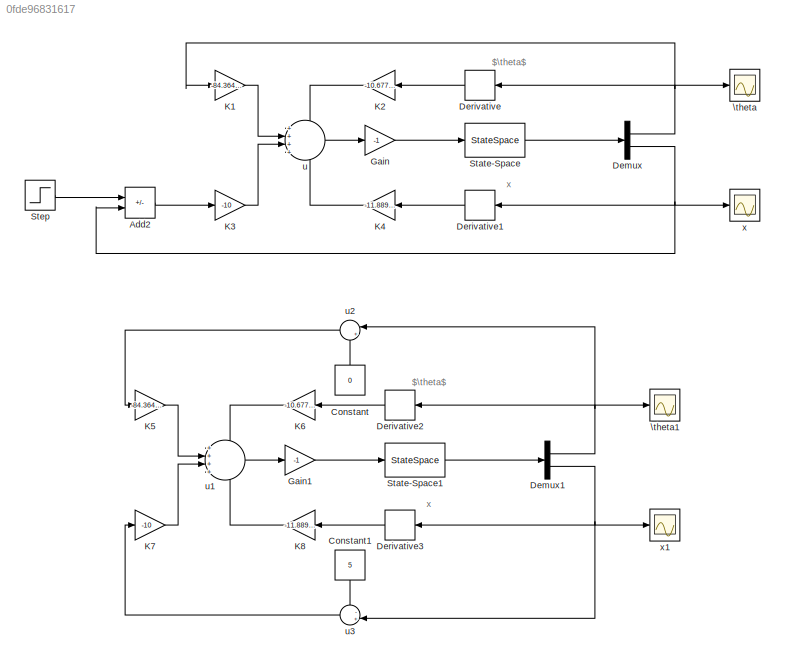
MODEL slx_0fde96831617
KIND model
CONFIG AbsTol = auto
CONFIG EnableMultiTasking = off
CONFIG FixedStep = auto
CONFIG MaxStep = auto
CONFIG MinStep = auto
CONFIG RelTol = 1e-3
CONFIG SampleTimeConstraint = Unconstrained
CONFIG SolverName = VariableStepAuto
CONFIG StartTime = 0.0
CONFIG StopTime = 10
BLOCK [Sum] Add2
  IconShape = rectangular
  Inputs = -+
BLOCK [Constant] Constant
  NameLocation = right
  Value = 0
BLOCK [Constant] Constant1
  NameLocation = left
  Value = 5
BLOCK [Demux] Demux
  Outputs = 2
BLOCK [Demux] Demux1
  Outputs = 2
BLOCK [Derivative] Derivative
  NameLocation = top
BLOCK [Derivative] Derivative1
  NameLocation = top
BLOCK [Derivative] Derivative2
  NameLocation = top
BLOCK [Derivative] Derivative3
  NameLocation = top
BLOCK [Gain] Gain
  Gain = -1
BLOCK [Gain] Gain1
  Gain = -1
BLOCK [Gain] K1
  Gain = -84.3645030602988
BLOCK [Gain] K2
  Gain = -10.6775539641301
  NameLocation = top
BLOCK [Gain] K3
  Gain = -10
BLOCK [Gain] K4
  Gain = -11.8896327350960
  NameLocation = top
BLOCK [Gain] K5
  Gain = -84.3645030602988
BLOCK [Gain] K6
  Gain = -10.6775539641301
  NameLocation = top
BLOCK [Gain] K7
  Gain = -10
BLOCK [Gain] K8
  Gain = -11.8896327350960
  NameLocation = top
BLOCK [StateSpace] State-Space
  A = [0 1 0 0; 41.6300 0 0 0; 0 0 0 1;-0.6099 0 0 0];
  B = [0;-2.7584;0;0.6898]
  C = [1 0 0 0;0 0 1 0]
  D = [0;0]
  InitialCondition = [2 0 3 0]
BLOCK [StateSpace] State-Space1
  A = [0 1 0 0; 41.6300 0 0 0; 0 0 0 1;-0.6099 0 0 0];
  B = [0;-2.7584;0;0.6898]
  C = [1 0 0 0;0 0 1 0]
  D = [0;0]
  InitialCondition = [2 0 3 0]
BLOCK [Step] Step
  After = -0.5
  SampleTime = 0
  Time = 0
BLOCK [Scope] \theta
  Floating = off
  NumInputPorts = 1
  ScopeSpecificationString = Simulink.scopes.TimeScopeBlockCfg('CurrentConfiguration', extmgr.ConfigurationSet(extmgr.Configuration('Core','General UI',true,'FigureColor',[1 1 1]),extmgr.Configuration('Core','Source UI',true),extmgr.Configuration('Sources','WiredSimulink',true,'DataLoggingVariableName','ScopeData4'),extmgr.Configuration('Visuals','Time Domain',true,'SerializedDisplays',{struct('MinYLimReal','-1.18756','MaxYLi...<+1665ch>
BLOCK [Scope] \theta1
  Floating = off
  NumInputPorts = 1
  ScopeSpecificationString = Simulink.scopes.TimeScopeBlockCfg('CurrentConfiguration', extmgr.ConfigurationSet(extmgr.Configuration('Core','General UI',true,'FigureColor',[1 1 1]),extmgr.Configuration('Core','Source UI',true),extmgr.Configuration('Sources','WiredSimulink',true,'DataLoggingVariableName','ScopeData1'),extmgr.Configuration('Visuals','Time Domain',true,'SerializedDisplays',{struct('MinYLimReal','-0.5381','MaxYLim...<+1651ch>
BLOCK [Sum] u
  Inputs = ++++
BLOCK [Sum] u1
  Inputs = ++++
BLOCK [Sum] u2
  Inputs = |+-
  NameLocation = top
BLOCK [Sum] u3
  Inputs = -+|
  NameLocation = top
BLOCK [Scope] x
  Floating = off
  NumInputPorts = 1
  ScopeSpecificationString = Simulink.scopes.TimeScopeBlockCfg('CurrentConfiguration', extmgr.ConfigurationSet(extmgr.Configuration('Core','General UI',true,'FigureColor',[1 1 1]),extmgr.Configuration('Core','Source UI',true),extmgr.Configuration('Sources','WiredSimulink',true,'DataLoggingVariableName','ScopeData5'),extmgr.Configuration('Visuals','Time Domain',true,'SerializedDisplays',{struct('MinYLimReal','-1.23873','MaxYLi...<+1640ch>
BLOCK [Scope] x1
  Floating = off
  NumInputPorts = 1
  ScopeSpecificationString = Simulink.scopes.TimeScopeBlockCfg('CurrentConfiguration', extmgr.ConfigurationSet(extmgr.Configuration('Core','General UI',true,'FigureColor',[1 1 1]),extmgr.Configuration('Core','Source UI',true),extmgr.Configuration('Sources','WiredSimulink',true,'DataLoggingVariableName','ScopeData2'),extmgr.Configuration('Visuals','Time Domain',true,'SerializedDisplays',{struct('MinYLimReal','2.71266','MaxYLim...<+1622ch>
ANNOTATION (root): x
ANNOTATION (root): $\theta$
LINE Add2:1 -> K3:1
LINE Constant1:1 -> u3:1
LINE Constant:1 -> u2:2
NET Demux1:1 -> Derivative2:1, \theta1:1, u2:1
NET Demux1:2 -> Derivative3:1, u3:2, x1:1
NET Demux:1 -> Derivative:1, K1:1, \theta:1
NET Demux:2 -> Add2:2, Derivative1:1, x:1
LINE Derivative1:1 -> K4:1
LINE Derivative2:1 -> K6:1
LINE Derivative3:1 -> K8:1
LINE Derivative:1 -> K2:1
LINE Gain1:1 -> State-Space1:1
LINE Gain:1 -> State-Space:1
LINE K1:1 -> u:2
LINE K2:1 -> u:1
LINE K3:1 -> u:3
LINE K4:1 -> u:4
LINE K5:1 -> u1:2
LINE K6:1 -> u1:1
LINE K7:1 -> u1:3
LINE K8:1 -> u1:4
LINE State-Space1:1 -> Demux1:1
LINE State-Space:1 -> Demux:1
LINE Step:1 -> Add2:1
LINE u1:1 -> Gain1:1
LINE u2:1 -> K5:1
LINE u3:1 -> K7:1
LINE u:1 -> Gain:1
note: NET lines group one-source signal fan-out (src -> all destinations, sorted); 1:1 wires keep LINE
